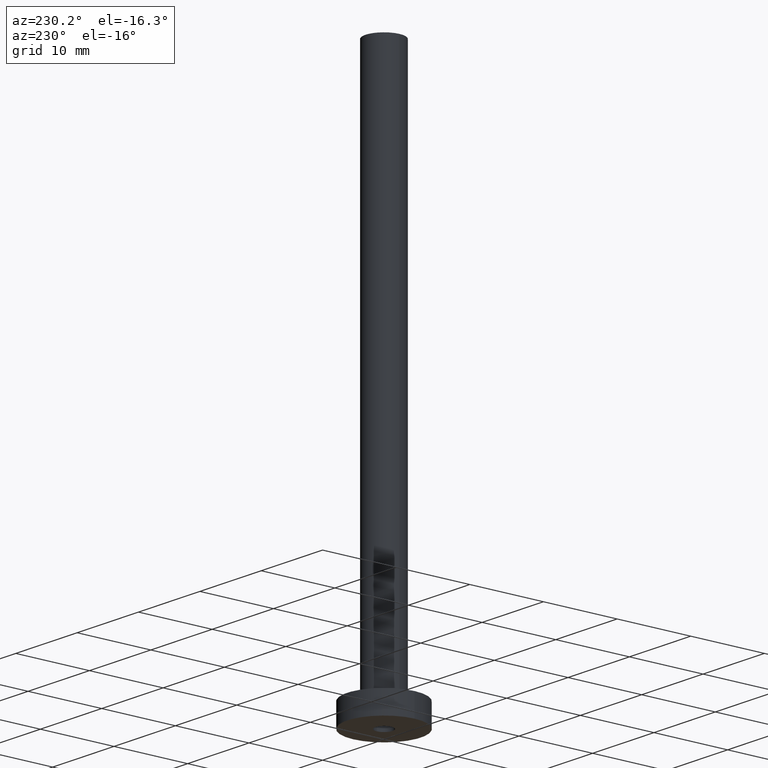
[diagram: clean part render]
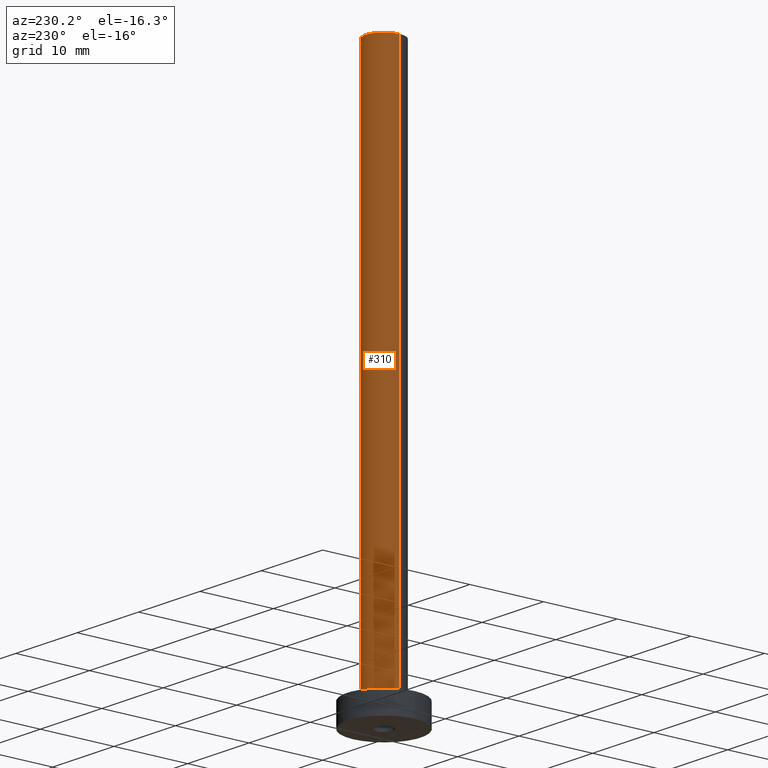
[diagram: same view with one face highlighted and labeled with its STEP entity id]
A machine part, auxiliary view. The second image highlights one B-rep face of the part: STEP entity #310.
In plain terms, the highlighted cylindrical surface (edge-blend (fillet) strip) has radius 2.5 mm, axis along (-0, -0, -1).
Its self-contained STEP definition (entity closure, byte-faithful):
#6 = CARTESIAN_POINT ( 'NONE',  ( 0.000000000000000000, 0.000000000000000000, 3.299999999999997158 ) ) ;
#40 = CARTESIAN_POINT ( 'NONE',  ( -2.500000000000000000, 0.000000000000000000, 75.00000000000001421 ) ) ;
#54 = EDGE_CURVE ( 'NONE', #316, #216, #146, .T. ) ;
#81 = CARTESIAN_POINT ( 'NONE',  ( 2.500000000000000000, 3.061616997868383141E-16, 3.299999999999997158 ) ) ;
#87 = VECTOR ( 'NONE', #388, 1000.000000000000000 ) ;
#89 = CARTESIAN_POINT ( 'NONE',  ( -2.500000000000000000, 0.000000000000000000, 3.299999999999997158 ) ) ;
#97 = CYLINDRICAL_SURFACE ( 'NONE', #408, 2.500000000000000000 ) ;
#146 = LINE ( 'NONE', #285, #87 ) ;
#151 = DIRECTION ( 'NONE',  ( 0.000000000000000000, 0.000000000000000000, 1.000000000000000000 ) ) ;
#152 = EDGE_CURVE ( 'NONE', #419, #422, #251, .T. ) ;
#154 = ORIENTED_EDGE ( 'NONE', *, *, #342, .F. ) ;
#167 = DIRECTION ( 'NONE',  ( 0.000000000000000000, 0.000000000000000000, 1.000000000000000000 ) ) ;
#171 = CARTESIAN_POINT ( 'NONE',  ( 0.000000000000000000, 0.000000000000000000, 75.00000000000001421 ) ) ;
#190 = EDGE_CURVE ( 'NONE', #216, #422, #375, .T. ) ;
#204 = CARTESIAN_POINT ( 'NONE',  ( 0.000000000000000000, 0.000000000000000000, 75.00000000000001421 ) ) ;
#211 = DIRECTION ( 'NONE',  ( -1.000000000000000000, 0.000000000000000000, 0.000000000000000000 ) ) ;
#216 = VERTEX_POINT ( 'NONE', #81 ) ;
#239 = DIRECTION ( 'NONE',  ( 1.000000000000000000, 0.000000000000000000, 0.000000000000000000 ) ) ;
#251 = LINE ( 'NONE', #40, #318 ) ;
#265 = CARTESIAN_POINT ( 'NONE',  ( -2.500000000000000000, 0.000000000000000000, 75.00000000000001421 ) ) ;
#271 = DIRECTION ( 'NONE',  ( -0.000000000000000000, -0.000000000000000000, -1.000000000000000000 ) ) ;
#284 = CIRCLE ( 'NONE', #353, 2.500000000000000000 ) ;
#285 = CARTESIAN_POINT ( 'NONE',  ( 2.500000000000000000, 3.061616997868383141E-16, 75.00000000000001421 ) ) ;
#287 = ORIENTED_EDGE ( 'NONE', *, *, #152, .F. ) ;
#301 = CARTESIAN_POINT ( 'NONE',  ( 2.500000000000000000, 3.061616997868383141E-16, 75.00000000000001421 ) ) ;
#310 = ADVANCED_FACE ( 'NONE', ( #457 ), #97, .T. ) ;
#314 = ORIENTED_EDGE ( 'NONE', *, *, #54, .T. ) ;
#316 = VERTEX_POINT ( 'NONE', #301 ) ;
#318 = VECTOR ( 'NONE', #433, 1000.000000000000000 ) ;
#336 = AXIS2_PLACEMENT_3D ( 'NONE', #6, #151, #391 ) ;
#342 = EDGE_CURVE ( 'NONE', #316, #419, #284, .T. ) ;
#353 = AXIS2_PLACEMENT_3D ( 'NONE', #204, #167, #239 ) ;
#375 = CIRCLE ( 'NONE', #336, 2.500000000000000000 ) ;
#386 = EDGE_LOOP ( 'NONE', ( #154, #314, #429, #287 ) ) ;
#388 = DIRECTION ( 'NONE',  ( -0.000000000000000000, -0.000000000000000000, -1.000000000000000000 ) ) ;
#391 = DIRECTION ( 'NONE',  ( 1.000000000000000000, 0.000000000000000000, 0.000000000000000000 ) ) ;
#408 = AXIS2_PLACEMENT_3D ( 'NONE', #171, #271, #211 ) ;
#419 = VERTEX_POINT ( 'NONE', #265 ) ;
#422 = VERTEX_POINT ( 'NONE', #89 ) ;
#429 = ORIENTED_EDGE ( 'NONE', *, *, #190, .T. ) ;
#433 = DIRECTION ( 'NONE',  ( -0.000000000000000000, -0.000000000000000000, -1.000000000000000000 ) ) ;
#457 = FACE_OUTER_BOUND ( 'NONE', #386, .T. ) ;